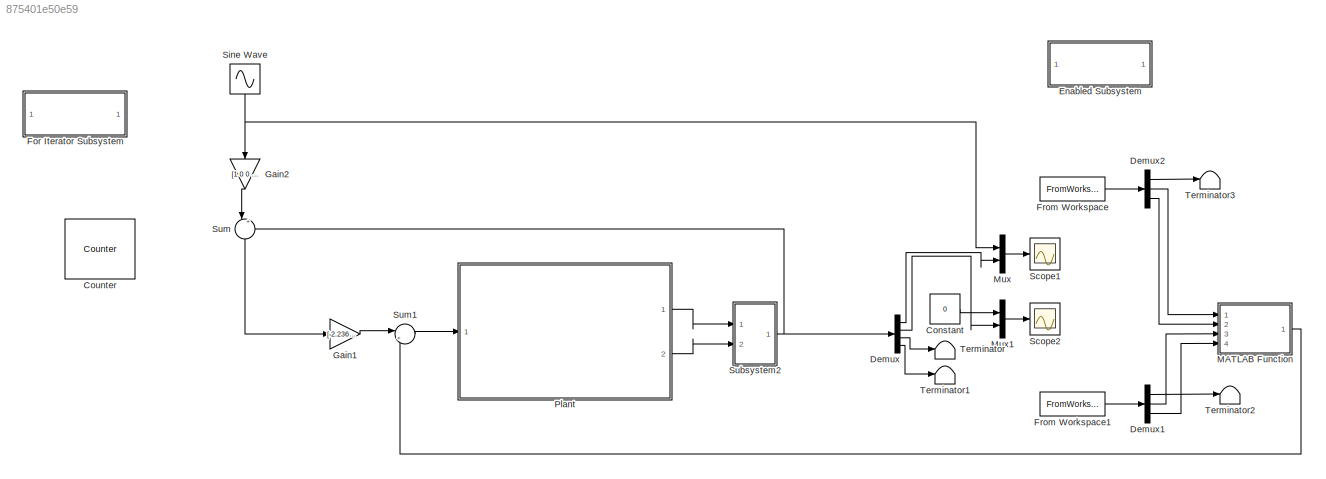
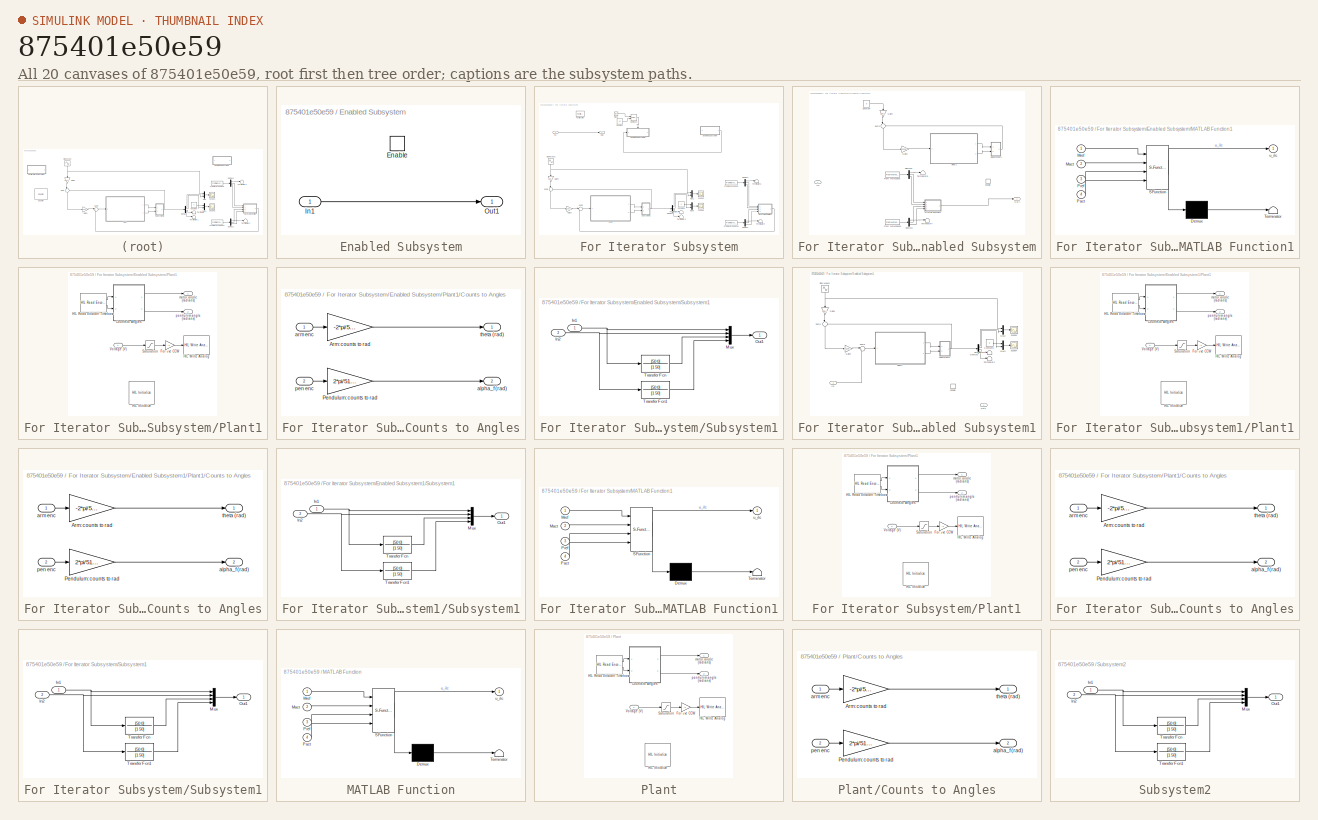
[diagram: thumbnail index - all 20 canvases of the model, root first then tree order]
MODEL slx_875401e50e59
KIND model
CONFIG AbsTol = auto
CONFIG EnableMultiTasking = on
CONFIG FixedStep = 0.002
CONFIG MaxStep = auto
CONFIG MinStep = auto
CONFIG RelTol = 1e-3
CONFIG SampleTimeConstraint = Unconstrained
CONFIG Solver = FixedStepDiscrete
CONFIG SolverName = FixedStepDiscrete
CONFIG StartTime = 0.0
CONFIG StopTime = inf
BLOCK [Constant] Constant
  Value = 0
BLOCK [Reference] Counter  REF=dspswit3/Counter
  Ports = [2, 2]
  SourceBlock = dspswit3/Counter
  SourceProductBaseCode = DS
  SourceProductName = DSP System Toolbox
  SourceType = Counter
BLOCK [Demux] Demux
  DisplayOption = bar
  Ports = [1, 4]
BLOCK [Demux] Demux1
  DisplayOption = bar
  Outputs = 3
  Ports = [1, 3]
BLOCK [Demux] Demux2
  DisplayOption = bar
  Outputs = 3
  Ports = [1, 3]
BLOCK [SubSystem] Enabled Subsystem
  Ports = [1, 1, 1]
  RequestExecContextInheritance = off
  TreatAsAtomicUnit = on
BLOCK [EnablePort] Enabled Subsystem/Enable
  Ports = []
BLOCK [Inport] Enabled Subsystem/In1
  IconDisplay = Port number
BLOCK [Outport] Enabled Subsystem/Out1
  IconDisplay = Port number
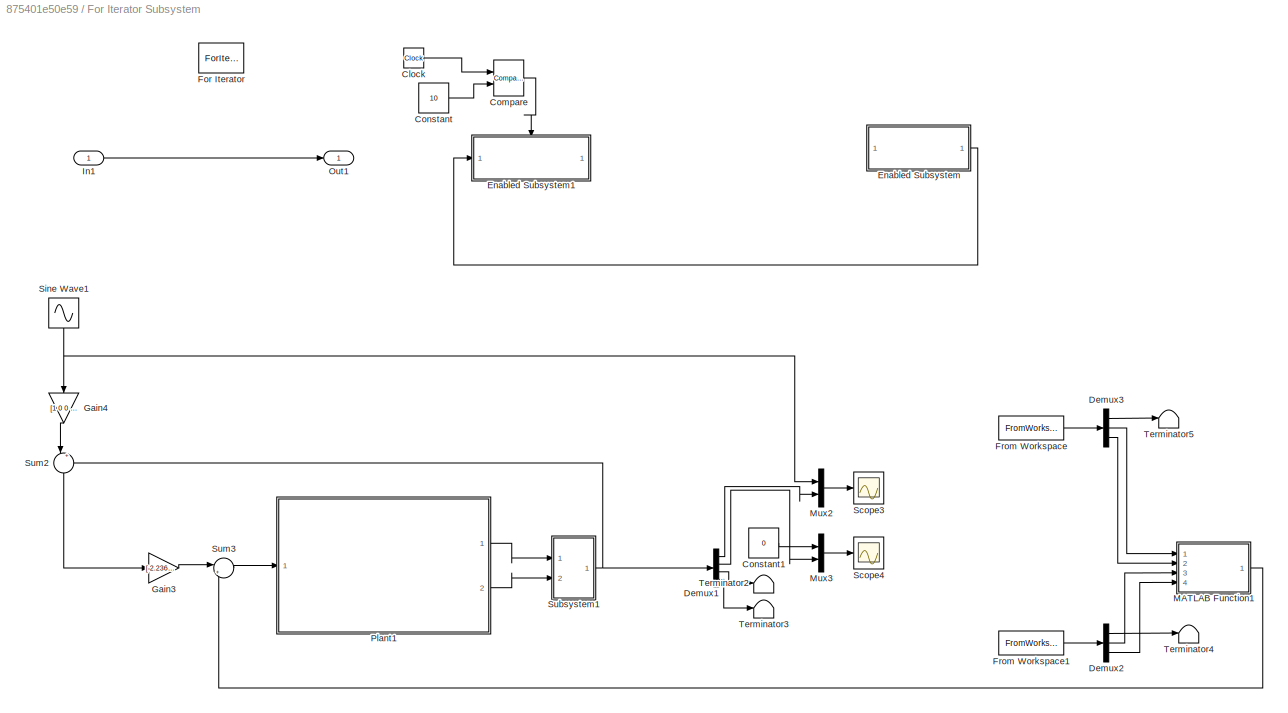
BLOCK [SubSystem] For Iterator Subsystem
  Ports = [1, 1]
  RequestExecContextInheritance = off
  TreatAsAtomicUnit = on
BLOCK [Clock] For Iterator Subsystem/Clock
BLOCK [Reference] For Iterator Subsystem/Compare  REF=quarc_library/Logic Operations/Compare
  Ports = [2, 1]
  SourceBlock = quarc_library/Logic Operations/Compare
  SourceProductName = QUARC Targets
  SourceType = Compare
BLOCK [Constant] For Iterator Subsystem/Constant
  Value = 10
BLOCK [Constant] For Iterator Subsystem/Constant1
  Value = 0
BLOCK [Demux] For Iterator Subsystem/Demux1
  DisplayOption = bar
  Ports = [1, 4]
BLOCK [Demux] For Iterator Subsystem/Demux2
  DisplayOption = bar
  Outputs = 3
  Ports = [1, 3]
BLOCK [Demux] For Iterator Subsystem/Demux3
  DisplayOption = bar
  Outputs = 3
  Ports = [1, 3]
BLOCK [SubSystem] For Iterator Subsystem/Enabled Subsystem
  Ports = [1, 1, 1]
  RequestExecContextInheritance = off
  TreatAsAtomicUnit = on
BLOCK [Constant] For Iterator Subsystem/Enabled Subsystem/Constant
  Value = 0
BLOCK [Demux] For Iterator Subsystem/Enabled Subsystem/Demux2
  DisplayOption = bar
  Outputs = 3
  Ports = [1, 3]
BLOCK [Demux] For Iterator Subsystem/Enabled Subsystem/Demux3
  DisplayOption = bar
  Outputs = 3
  Ports = [1, 3]
BLOCK [EnablePort] For Iterator Subsystem/Enabled Subsystem/Enable
  Ports = []
BLOCK [FromWorkspace] For Iterator Subsystem/Enabled Subsystem/From Workspace
  SampleTime = 0
  VariableName = Motor
  ZeroCross = on
BLOCK [FromWorkspace] For Iterator Subsystem/Enabled Subsystem/From Workspace1
  SampleTime = 0
  VariableName = Pend
  ZeroCross = on
BLOCK [Gain] For Iterator Subsystem/Enabled Subsystem/Gain3
  Gain = [-2.2361 37.6175 -1.5007 3.3789]
  Multiplication = Matrix(K*u)
  OutDataTypeStr = Inherit: Inherit via internal rule
  ParamDataTypeStr = Inherit: Inherit via internal rule
  SaturateOnIntegerOverflow = off
BLOCK [Gain] For Iterator Subsystem/Enabled Subsystem/Gain4
  Gain = [1 0 0 0]
  OutDataTypeStr = Inherit: Inherit via internal rule
  ParamDataTypeStr = Inherit: Inherit via internal rule
  SaturateOnIntegerOverflow = off
BLOCK [Inport] For Iterator Subsystem/Enabled Subsystem/In1
  IconDisplay = Port number
BLOCK [SubSystem] For Iterator Subsystem/Enabled Subsystem/MATLAB Function1
  ErrorFcn = Stateflow.Translate.translate
  PermitHierarchicalResolution = ExplicitOnly
  Ports = [4, 1]
  RequestExecContextInheritance = off
  SFBlockType = MATLAB Function
  TreatAsAtomicUnit = on
BLOCK [Demux] For Iterator Subsystem/Enabled Subsystem/MATLAB Function1/ Demux 
  Outputs = 1
  Ports = [1, 1]
BLOCK [S-Function] For Iterator Subsystem/Enabled Subsystem/MATLAB Function1/ SFunction 
  EnableBusSupport = off
  FunctionName = sf_sfun
  PortCounts = [4 2]
  Ports = [4, 2]
  SFcnIsStateOwnerBlock = off
  SFunctionDeploymentMode = off
  Tag = Stateflow S-Function ILC_hardware 1
BLOCK [Terminator] For Iterator Subsystem/Enabled Subsystem/MATLAB Function1/ Terminator 
BLOCK [Inport] For Iterator Subsystem/Enabled Subsystem/MATLAB Function1/Mact
  IconDisplay = Port number
  Port = 2
BLOCK [Inport] For Iterator Subsystem/Enabled Subsystem/MATLAB Function1/Mref
  IconDisplay = Port number
BLOCK [Inport] For Iterator Subsystem/Enabled Subsystem/MATLAB Function1/Pact
  IconDisplay = Port number
  Port = 4
BLOCK [Inport] For Iterator Subsystem/Enabled Subsystem/MATLAB Function1/Pref
  IconDisplay = Port number
  Port = 3
BLOCK [Outport] For Iterator Subsystem/Enabled Subsystem/MATLAB Function1/u_ilc
  IconDisplay = Port number
BLOCK [Outport] For Iterator Subsystem/Enabled Subsystem/Out1
  IconDisplay = Port number
BLOCK [SubSystem] For Iterator Subsystem/Enabled Subsystem/Plant1
  Ports = [1, 2]
  RequestExecContextInheritance = off
BLOCK [SubSystem] For Iterator Subsystem/Enabled Subsystem/Plant1/Counts to Angles
  Ports = [2, 2]
  RequestExecContextInheritance = off
BLOCK [Gain] For Iterator Subsystem/Enabled Subsystem/Plant1/Counts to Angles/Arm: counts to rad
  Gain = -2*pi/512/4
  OutDataTypeStr = Inherit: Inherit via internal rule
  ParamDataTypeStr = Inherit: Inherit via internal rule
  SaturateOnIntegerOverflow = off
BLOCK [Gain] For Iterator Subsystem/Enabled Subsystem/Plant1/Counts to Angles/Pendulum: counts to rad
  Gain = 2*pi/512/4
  OutDataTypeStr = Inherit: Inherit via internal rule
  ParamDataTypeStr = Inherit: Inherit via internal rule
  SaturateOnIntegerOverflow = off
BLOCK [Outport] For Iterator Subsystem/Enabled Subsystem/Plant1/Counts to Angles/alpha_f (rad)
  IconDisplay = Port number
  Port = 2
BLOCK [Inport] For Iterator Subsystem/Enabled Subsystem/Plant1/Counts to Angles/arm enc
  IconDisplay = Port number
BLOCK [Inport] For Iterator Subsystem/Enabled Subsystem/Plant1/Counts to Angles/pen enc
  IconDisplay = Port number
  Port = 2
BLOCK [Outport] For Iterator Subsystem/Enabled Subsystem/Plant1/Counts to Angles/theta (rad)
  IconDisplay = Port number
BLOCK [Gain] For Iterator Subsystem/Enabled Subsystem/Plant1/For +ve CCW
  Gain = -1
  OutDataTypeStr = Inherit: Inherit via internal rule
  ParamDataTypeStr = Inherit: Inherit via internal rule
  SaturateOnIntegerOverflow = off
BLOCK [Reference] For Iterator Subsystem/Enabled Subsystem/Plant1/HIL Initialize  REF=quarc_library/Data Acquisition/Generic/Configuration/HIL Initialize
  AttributesFormatString = %<object_name> (%<board_type>-%<board_number>)
  Ports = []
  SourceBlock = quarc_library/Data Acquisition/Generic/Configuration/HIL Initialize
  SourceProductName = QUARC Targets
  SourceType = HIL Initialize
  UserDataPersistent = on
BLOCK [Reference] For Iterator Subsystem/Enabled Subsystem/Plant1/HIL Read Encoder Timebase  REF=quarc_library/Data Acquisition/Generic/Timebases/HIL Read Encoder
Timebase
  AttributesFormatString = (%<object_name>)
  Ports = [0, 2]
  SourceBlock = quarc_library/Data Acquisition/Generic/Timebases/HIL Read Encoder\nTimebase
  SourceProductName = QUARC Targets
  SourceType = HIL Read Encoder Timebase
  UserDataPersistent = on
BLOCK [Reference] For Iterator Subsystem/Enabled Subsystem/Plant1/HIL Write Analog  REF=quarc_library/Data Acquisition/Generic/Immediate I//O/HIL Write Analog
  AttributesFormatString = (%<object_name>)
  Ports = [1]
  SourceBlock = quarc_library/Data Acquisition/Generic/Immediate I//O/HIL Write Analog
  SourceProductName = QUARC Targets
  SourceType = HIL Write Analog
  UserDataPersistent = on
BLOCK [Saturate] For Iterator Subsystem/Enabled Subsystem/Plant1/Saturation
  InputPortMap = u0
  LowerLimit = -10
  Ports = [1, 1]
  UpperLimit = 10
BLOCK [Inport] For Iterator Subsystem/Enabled Subsystem/Plant1/Voltage (V)
  IconDisplay = Port number
BLOCK [Outport] For Iterator Subsystem/Enabled Subsystem/Plant1/motor angle (radians)
  IconDisplay = Port number
BLOCK [Outport] For Iterator Subsystem/Enabled Subsystem/Plant1/pendulum angle (radians)
  IconDisplay = Port number
  Port = 2
BLOCK [SubSystem] For Iterator Subsystem/Enabled Subsystem/Subsystem1
  Ports = [2, 1]
  RequestExecContextInheritance = off
BLOCK [Inport] For Iterator Subsystem/Enabled Subsystem/Subsystem1/In1
  IconDisplay = Port number
BLOCK [Inport] For Iterator Subsystem/Enabled Subsystem/Subsystem1/In2
  IconDisplay = Port number
  Port = 2
BLOCK [Mux] For Iterator Subsystem/Enabled Subsystem/Subsystem1/Mux
  DisplayOption = bar
  Ports = [4, 1]
BLOCK [Outport] For Iterator Subsystem/Enabled Subsystem/Subsystem1/Out1
  IconDisplay = Port number
BLOCK [TransferFcn] For Iterator Subsystem/Enabled Subsystem/Subsystem1/Transfer Fcn
  Denominator = [1 50]
  Numerator = [50 0]
BLOCK [TransferFcn] For Iterator Subsystem/Enabled Subsystem/Subsystem1/Transfer Fcn1
  Denominator = [1 50]
  Numerator = [50 0]
BLOCK [Sum] For Iterator Subsystem/Enabled Subsystem/Sum2
  IconShape = round
  InputSameDT = off
  Inputs = |+-
  OutDataTypeStr = Inherit: Inherit via internal rule
  Ports = [2, 1]
  SaturateOnIntegerOverflow = off
BLOCK [Terminator] For Iterator Subsystem/Enabled Subsystem/Terminator4
BLOCK [Terminator] For Iterator Subsystem/Enabled Subsystem/Terminator5
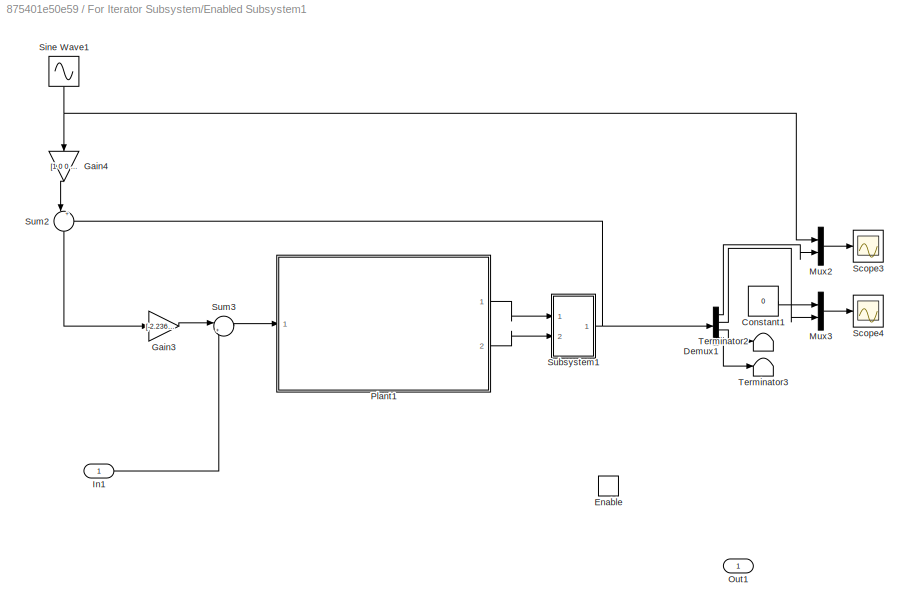
BLOCK [SubSystem] For Iterator Subsystem/Enabled Subsystem1
  Ports = [1, 1, 1]
  RequestExecContextInheritance = off
  TreatAsAtomicUnit = on
BLOCK [Constant] For Iterator Subsystem/Enabled Subsystem1/Constant1
  Value = 0
BLOCK [Demux] For Iterator Subsystem/Enabled Subsystem1/Demux1
  DisplayOption = bar
  Ports = [1, 4]
BLOCK [EnablePort] For Iterator Subsystem/Enabled Subsystem1/Enable
  Ports = []
BLOCK [Gain] For Iterator Subsystem/Enabled Subsystem1/Gain3
  Gain = [-2.2361 37.6175 -1.5007 3.3789]
  Multiplication = Matrix(K*u)
  OutDataTypeStr = Inherit: Inherit via internal rule
  ParamDataTypeStr = Inherit: Inherit via internal rule
  SaturateOnIntegerOverflow = off
BLOCK [Gain] For Iterator Subsystem/Enabled Subsystem1/Gain4
  Gain = [1 0 0 0]
  OutDataTypeStr = Inherit: Inherit via internal rule
  ParamDataTypeStr = Inherit: Inherit via internal rule
  SaturateOnIntegerOverflow = off
BLOCK [Inport] For Iterator Subsystem/Enabled Subsystem1/In1
  IconDisplay = Port number
BLOCK [Mux] For Iterator Subsystem/Enabled Subsystem1/Mux2
  DisplayOption = bar
  Inputs = 2
  Ports = [2, 1]
BLOCK [Mux] For Iterator Subsystem/Enabled Subsystem1/Mux3
  DisplayOption = bar
  Inputs = 2
  Ports = [2, 1]
BLOCK [Outport] For Iterator Subsystem/Enabled Subsystem1/Out1
  IconDisplay = Port number
BLOCK [SubSystem] For Iterator Subsystem/Enabled Subsystem1/Plant1
  Ports = [1, 2]
  RequestExecContextInheritance = off
BLOCK [SubSystem] For Iterator Subsystem/Enabled Subsystem1/Plant1/Counts to Angles
  Ports = [2, 2]
  RequestExecContextInheritance = off
BLOCK [Gain] For Iterator Subsystem/Enabled Subsystem1/Plant1/Counts to Angles/Arm: counts to rad
  Gain = -2*pi/512/4
  OutDataTypeStr = Inherit: Inherit via internal rule
  ParamDataTypeStr = Inherit: Inherit via internal rule
  SaturateOnIntegerOverflow = off
BLOCK [Gain] For Iterator Subsystem/Enabled Subsystem1/Plant1/Counts to Angles/Pendulum: counts to rad
  Gain = 2*pi/512/4
  OutDataTypeStr = Inherit: Inherit via internal rule
  ParamDataTypeStr = Inherit: Inherit via internal rule
  SaturateOnIntegerOverflow = off
BLOCK [Outport] For Iterator Subsystem/Enabled Subsystem1/Plant1/Counts to Angles/alpha_f (rad)
  IconDisplay = Port number
  Port = 2
BLOCK [Inport] For Iterator Subsystem/Enabled Subsystem1/Plant1/Counts to Angles/arm enc
  IconDisplay = Port number
BLOCK [Inport] For Iterator Subsystem/Enabled Subsystem1/Plant1/Counts to Angles/pen enc
  IconDisplay = Port number
  Port = 2
BLOCK [Outport] For Iterator Subsystem/Enabled Subsystem1/Plant1/Counts to Angles/theta (rad)
  IconDisplay = Port number
BLOCK [Gain] For Iterator Subsystem/Enabled Subsystem1/Plant1/For +ve CCW
  Gain = -1
  OutDataTypeStr = Inherit: Inherit via internal rule
  ParamDataTypeStr = Inherit: Inherit via internal rule
  SaturateOnIntegerOverflow = off
BLOCK [Reference] For Iterator Subsystem/Enabled Subsystem1/Plant1/HIL Initialize  REF=quarc_library/Data Acquisition/Generic/Configuration/HIL Initialize
  AttributesFormatString = %<object_name> (%<board_type>-%<board_number>)
  Ports = []
  SourceBlock = quarc_library/Data Acquisition/Generic/Configuration/HIL Initialize
  SourceProductName = QUARC Targets
  SourceType = HIL Initialize
  UserDataPersistent = on
BLOCK [Reference] For Iterator Subsystem/Enabled Subsystem1/Plant1/HIL Read Encoder Timebase  REF=quarc_library/Data Acquisition/Generic/Timebases/HIL Read Encoder
Timebase
  AttributesFormatString = (%<object_name>)
  Ports = [0, 2]
  SourceBlock = quarc_library/Data Acquisition/Generic/Timebases/HIL Read Encoder\nTimebase
  SourceProductName = QUARC Targets
  SourceType = HIL Read Encoder Timebase
  UserDataPersistent = on
BLOCK [Reference] For Iterator Subsystem/Enabled Subsystem1/Plant1/HIL Write Analog  REF=quarc_library/Data Acquisition/Generic/Immediate I//O/HIL Write Analog
  AttributesFormatString = (%<object_name>)
  Ports = [1]
  SourceBlock = quarc_library/Data Acquisition/Generic/Immediate I//O/HIL Write Analog
  SourceProductName = QUARC Targets
  SourceType = HIL Write Analog
  UserDataPersistent = on
BLOCK [Saturate] For Iterator Subsystem/Enabled Subsystem1/Plant1/Saturation
  InputPortMap = u0
  LowerLimit = -10
  Ports = [1, 1]
  UpperLimit = 10
BLOCK [Inport] For Iterator Subsystem/Enabled Subsystem1/Plant1/Voltage (V)
  IconDisplay = Port number
BLOCK [Outport] For Iterator Subsystem/Enabled Subsystem1/Plant1/motor angle (radians)
  IconDisplay = Port number
BLOCK [Outport] For Iterator Subsystem/Enabled Subsystem1/Plant1/pendulum angle (radians)
  IconDisplay = Port number
  Port = 2
BLOCK [Scope] For Iterator Subsystem/Enabled Subsystem1/Scope3
  Floating = off
  NumInputPorts = 1
  Ports = [1]
  ScopeSpecificationString = Simulink.scopes.TimeScopeBlockCfg('CurrentConfiguration', extmgr.ConfigurationSet(extmgr.Configuration('Core','General UI',true),extmgr.Configuration('Core','Source UI',true),extmgr.Configuration('Sources','WiredSimulink',true,'DataLogging',true,'DataLoggingSaveFormat','Array','DataLoggingVariableName','Motor2'),extmgr.Configuration('Visuals','Time Domain',true,'SerializedDisplays',{struct('MinYLi...<+1441ch>
BLOCK [Scope] For Iterator Subsystem/Enabled Subsystem1/Scope4
  Floating = off
  NumInputPorts = 1
  Ports = [1]
  ScopeSpecificationString = Simulink.scopes.TimeScopeBlockCfg('CurrentConfiguration', extmgr.ConfigurationSet(extmgr.Configuration('Core','General UI',true),extmgr.Configuration('Core','Source UI',true),extmgr.Configuration('Sources','WiredSimulink',true,'DataLogging',true,'DataLoggingSaveFormat','Array','DataLoggingVariableName','Pend2'),extmgr.Configuration('Visuals','Time Domain',true,'SerializedDisplays',{struct('MinYLim...<+1466ch>
BLOCK [Sin] For Iterator Subsystem/Enabled Subsystem1/Sine Wave1
  Frequency = 2*pi
  Ports = [0, 1]
  SampleTime = 0
BLOCK [SubSystem] For Iterator Subsystem/Enabled Subsystem1/Subsystem1
  Ports = [2, 1]
  RequestExecContextInheritance = off
BLOCK [Inport] For Iterator Subsystem/Enabled Subsystem1/Subsystem1/In1
  IconDisplay = Port number
BLOCK [Inport] For Iterator Subsystem/Enabled Subsystem1/Subsystem1/In2
  IconDisplay = Port number
  Port = 2
BLOCK [Mux] For Iterator Subsystem/Enabled Subsystem1/Subsystem1/Mux
  DisplayOption = bar
  Ports = [4, 1]
BLOCK [Outport] For Iterator Subsystem/Enabled Subsystem1/Subsystem1/Out1
  IconDisplay = Port number
BLOCK [TransferFcn] For Iterator Subsystem/Enabled Subsystem1/Subsystem1/Transfer Fcn
  Denominator = [1 50]
  Numerator = [50 0]
BLOCK [TransferFcn] For Iterator Subsystem/Enabled Subsystem1/Subsystem1/Transfer Fcn1
  Denominator = [1 50]
  Numerator = [50 0]
BLOCK [Sum] For Iterator Subsystem/Enabled Subsystem1/Sum2
  IconShape = round
  InputSameDT = off
  Inputs = |+-
  OutDataTypeStr = Inherit: Inherit via internal rule
  Ports = [2, 1]
  SaturateOnIntegerOverflow = off
BLOCK [Sum] For Iterator Subsystem/Enabled Subsystem1/Sum3
  IconShape = round
  InputSameDT = off
  Inputs = |++
  OutDataTypeStr = Inherit: Inherit via internal rule
  Ports = [2, 1]
  SaturateOnIntegerOverflow = off
BLOCK [Terminator] For Iterator Subsystem/Enabled Subsystem1/Terminator2
BLOCK [Terminator] For Iterator Subsystem/Enabled Subsystem1/Terminator3
BLOCK [ForIterator] For Iterator Subsystem/For Iterator
  IterationLimit = 50
  Ports = [0, 1]
BLOCK [FromWorkspace] For Iterator Subsystem/From Workspace
  SampleTime = 0
  VariableName = Motor
  ZeroCross = on
BLOCK [FromWorkspace] For Iterator Subsystem/From Workspace1
  SampleTime = 0
  VariableName = Pend
  ZeroCross = on
BLOCK [Gain] For Iterator Subsystem/Gain3
  Gain = [-2.2361 37.6175 -1.5007 3.3789]
  Multiplication = Matrix(K*u)
  OutDataTypeStr = Inherit: Inherit via internal rule
  ParamDataTypeStr = Inherit: Inherit via internal rule
  SaturateOnIntegerOverflow = off
BLOCK [Gain] For Iterator Subsystem/Gain4
  Gain = [1 0 0 0]
  OutDataTypeStr = Inherit: Inherit via internal rule
  ParamDataTypeStr = Inherit: Inherit via internal rule
  SaturateOnIntegerOverflow = off
BLOCK [Inport] For Iterator Subsystem/In1
  IconDisplay = Port number
BLOCK [SubSystem] For Iterator Subsystem/MATLAB Function1
  ErrorFcn = Stateflow.Translate.translate
  PermitHierarchicalResolution = ExplicitOnly
  Ports = [4, 1]
  RequestExecContextInheritance = off
  SFBlockType = MATLAB Function
  TreatAsAtomicUnit = on
BLOCK [Demux] For Iterator Subsystem/MATLAB Function1/ Demux 
  Outputs = 1
  Ports = [1, 1]
BLOCK [S-Function] For Iterator Subsystem/MATLAB Function1/ SFunction 
  EnableBusSupport = off
  FunctionName = sf_sfun
  PortCounts = [4 2]
  Ports = [4, 2]
  SFcnIsStateOwnerBlock = off
  SFunctionDeploymentMode = off
  Tag = Stateflow S-Function ILC_hardware 3
BLOCK [Terminator] For Iterator Subsystem/MATLAB Function1/ Terminator 
BLOCK [Inport] For Iterator Subsystem/MATLAB Function1/Mact
  IconDisplay = Port number
  Port = 2
BLOCK [Inport] For Iterator Subsystem/MATLAB Function1/Mref
  IconDisplay = Port number
BLOCK [Inport] For Iterator Subsystem/MATLAB Function1/Pact
  IconDisplay = Port number
  Port = 4
BLOCK [Inport] For Iterator Subsystem/MATLAB Function1/Pref
  IconDisplay = Port number
  Port = 3
BLOCK [Outport] For Iterator Subsystem/MATLAB Function1/u_ilc
  IconDisplay = Port number
BLOCK [Mux] For Iterator Subsystem/Mux2
  DisplayOption = bar
  Inputs = 2
  Ports = [2, 1]
BLOCK [Mux] For Iterator Subsystem/Mux3
  DisplayOption = bar
  Inputs = 2
  Ports = [2, 1]
BLOCK [Outport] For Iterator Subsystem/Out1
  IconDisplay = Port number
BLOCK [SubSystem] For Iterator Subsystem/Plant1
  Ports = [1, 2]
  RequestExecContextInheritance = off
BLOCK [SubSystem] For Iterator Subsystem/Plant1/Counts to Angles
  Ports = [2, 2]
  RequestExecContextInheritance = off
BLOCK [Gain] For Iterator Subsystem/Plant1/Counts to Angles/Arm: counts to rad
  Gain = -2*pi/512/4
  OutDataTypeStr = Inherit: Inherit via internal rule
  ParamDataTypeStr = Inherit: Inherit via internal rule
  SaturateOnIntegerOverflow = off
BLOCK [Gain] For Iterator Subsystem/Plant1/Counts to Angles/Pendulum: counts to rad
  Gain = 2*pi/512/4
  OutDataTypeStr = Inherit: Inherit via internal rule
  ParamDataTypeStr = Inherit: Inherit via internal rule
  SaturateOnIntegerOverflow = off
BLOCK [Outport] For Iterator Subsystem/Plant1/Counts to Angles/alpha_f (rad)
  IconDisplay = Port number
  Port = 2
BLOCK [Inport] For Iterator Subsystem/Plant1/Counts to Angles/arm enc
  IconDisplay = Port number
BLOCK [Inport] For Iterator Subsystem/Plant1/Counts to Angles/pen enc
  IconDisplay = Port number
  Port = 2
BLOCK [Outport] For Iterator Subsystem/Plant1/Counts to Angles/theta (rad)
  IconDisplay = Port number
BLOCK [Gain] For Iterator Subsystem/Plant1/For +ve CCW
  Gain = -1
  OutDataTypeStr = Inherit: Inherit via internal rule
  ParamDataTypeStr = Inherit: Inherit via internal rule
  SaturateOnIntegerOverflow = off
BLOCK [Reference] For Iterator Subsystem/Plant1/HIL Initialize  REF=quarc_library/Data Acquisition/Generic/Configuration/HIL Initialize
  AttributesFormatString = %<object_name> (%<board_type>-%<board_number>)
  Ports = []
  SourceBlock = quarc_library/Data Acquisition/Generic/Configuration/HIL Initialize
  SourceProductName = QUARC Targets
  SourceType = HIL Initialize
  UserDataPersistent = on
BLOCK [Reference] For Iterator Subsystem/Plant1/HIL Read Encoder Timebase  REF=quarc_library/Data Acquisition/Generic/Timebases/HIL Read Encoder
Timebase
  AttributesFormatString = (%<object_name>)
  Ports = [0, 2]
  SourceBlock = quarc_library/Data Acquisition/Generic/Timebases/HIL Read Encoder\nTimebase
  SourceProductName = QUARC Targets
  SourceType = HIL Read Encoder Timebase
  UserDataPersistent = on
BLOCK [Reference] For Iterator Subsystem/Plant1/HIL Write Analog  REF=quarc_library/Data Acquisition/Generic/Immediate I//O/HIL Write Analog
  AttributesFormatString = (%<object_name>)
  Ports = [1]
  SourceBlock = quarc_library/Data Acquisition/Generic/Immediate I//O/HIL Write Analog
  SourceProductName = QUARC Targets
  SourceType = HIL Write Analog
  UserDataPersistent = on
BLOCK [Saturate] For Iterator Subsystem/Plant1/Saturation
  InputPortMap = u0
  LowerLimit = -10
  Ports = [1, 1]
  UpperLimit = 10
BLOCK [Inport] For Iterator Subsystem/Plant1/Voltage (V)
  IconDisplay = Port number
BLOCK [Outport] For Iterator Subsystem/Plant1/motor angle (radians)
  IconDisplay = Port number
BLOCK [Outport] For Iterator Subsystem/Plant1/pendulum angle (radians)
  IconDisplay = Port number
  Port = 2
BLOCK [Scope] For Iterator Subsystem/Scope3
  Floating = off
  NumInputPorts = 1
  Ports = [1]
  ScopeSpecificationString = Simulink.scopes.TimeScopeBlockCfg('CurrentConfiguration', extmgr.ConfigurationSet(extmgr.Configuration('Core','General UI',true),extmgr.Configuration('Core','Source UI',true),extmgr.Configuration('Sources','WiredSimulink',true,'DataLogging',true,'DataLoggingSaveFormat','Array','DataLoggingVariableName','Motor1'),extmgr.Configuration('Visuals','Time Domain',true,'SerializedDisplays',{struct('MinYLi...<+1441ch>
BLOCK [Scope] For Iterator Subsystem/Scope4
  Floating = off
  NumInputPorts = 1
  Ports = [1]
  ScopeSpecificationString = Simulink.scopes.TimeScopeBlockCfg('CurrentConfiguration', extmgr.ConfigurationSet(extmgr.Configuration('Core','General UI',true),extmgr.Configuration('Core','Source UI',true),extmgr.Configuration('Sources','WiredSimulink',true,'DataLogging',true,'DataLoggingSaveFormat','Array','DataLoggingVariableName','Pend1'),extmgr.Configuration('Visuals','Time Domain',true,'SerializedDisplays',{struct('MinYLim...<+1466ch>
BLOCK [Sin] For Iterator Subsystem/Sine Wave1
  Frequency = 2*pi
  Ports = [0, 1]
  SampleTime = 0
BLOCK [SubSystem] For Iterator Subsystem/Subsystem1
  Ports = [2, 1]
  RequestExecContextInheritance = off
BLOCK [Inport] For Iterator Subsystem/Subsystem1/In1
  IconDisplay = Port number
BLOCK [Inport] For Iterator Subsystem/Subsystem1/In2
  IconDisplay = Port number
  Port = 2
BLOCK [Mux] For Iterator Subsystem/Subsystem1/Mux
  DisplayOption = bar
  Ports = [4, 1]
BLOCK [Outport] For Iterator Subsystem/Subsystem1/Out1
  IconDisplay = Port number
BLOCK [TransferFcn] For Iterator Subsystem/Subsystem1/Transfer Fcn
  Denominator = [1 50]
  Numerator = [50 0]
BLOCK [TransferFcn] For Iterator Subsystem/Subsystem1/Transfer Fcn1
  Denominator = [1 50]
  Numerator = [50 0]
BLOCK [Sum] For Iterator Subsystem/Sum2
  IconShape = round
  InputSameDT = off
  Inputs = |+-
  OutDataTypeStr = Inherit: Inherit via internal rule
  Ports = [2, 1]
  SaturateOnIntegerOverflow = off
BLOCK [Sum] For Iterator Subsystem/Sum3
  IconShape = round
  InputSameDT = off
  Inputs = |++
  OutDataTypeStr = Inherit: Inherit via internal rule
  Ports = [2, 1]
  SaturateOnIntegerOverflow = off
BLOCK [Terminator] For Iterator Subsystem/Terminator2
BLOCK [Terminator] For Iterator Subsystem/Terminator3
BLOCK [Terminator] For Iterator Subsystem/Terminator4
BLOCK [Terminator] For Iterator Subsystem/Terminator5
BLOCK [FromWorkspace] From Workspace
  SampleTime = 0
  VariableName = Motor
  ZeroCross = on
BLOCK [FromWorkspace] From Workspace1
  SampleTime = 0
  VariableName = Pend
  ZeroCross = on
BLOCK [Gain] Gain1
  Gain = [-2.2361 37.6175 -1.5007 3.3789]
  Multiplication = Matrix(K*u)
  OutDataTypeStr = Inherit: Inherit via internal rule
  ParamDataTypeStr = Inherit: Inherit via internal rule
  SaturateOnIntegerOverflow = off
BLOCK [Gain] Gain2
  Gain = [1 0 0 0]
  OutDataTypeStr = Inherit: Inherit via internal rule
  ParamDataTypeStr = Inherit: Inherit via internal rule
  SaturateOnIntegerOverflow = off
BLOCK [SubSystem] MATLAB Function
  ErrorFcn = Stateflow.Translate.translate
  PermitHierarchicalResolution = ExplicitOnly
  Ports = [4, 1]
  RequestExecContextInheritance = off
  SFBlockType = MATLAB Function
  TreatAsAtomicUnit = on
BLOCK [Demux] MATLAB Function/ Demux 
  Outputs = 1
  Ports = [1, 1]
BLOCK [S-Function] MATLAB Function/ SFunction 
  EnableBusSupport = off
  FunctionName = sf_sfun
  PortCounts = [4 2]
  Ports = [4, 2]
  SFcnIsStateOwnerBlock = off
  SFunctionDeploymentMode = off
  Tag = Stateflow S-Function ILC_hardware 2
BLOCK [Terminator] MATLAB Function/ Terminator 
BLOCK [Inport] MATLAB Function/Mact
  IconDisplay = Port number
  Port = 2
BLOCK [Inport] MATLAB Function/Mref
  IconDisplay = Port number
BLOCK [Inport] MATLAB Function/Pact
  IconDisplay = Port number
  Port = 4
BLOCK [Inport] MATLAB Function/Pref
  IconDisplay = Port number
  Port = 3
BLOCK [Outport] MATLAB Function/u_ilc
  IconDisplay = Port number
BLOCK [Mux] Mux
  DisplayOption = bar
  Inputs = 2
  Ports = [2, 1]
BLOCK [Mux] Mux1
  DisplayOption = bar
  Inputs = 2
  Ports = [2, 1]
BLOCK [SubSystem] Plant
  Ports = [1, 2]
  RequestExecContextInheritance = off
BLOCK [SubSystem] Plant/Counts to Angles
  Ports = [2, 2]
  RequestExecContextInheritance = off
BLOCK [Gain] Plant/Counts to Angles/Arm: counts to rad
  Gain = -2*pi/512/4
  OutDataTypeStr = Inherit: Inherit via internal rule
  ParamDataTypeStr = Inherit: Inherit via internal rule
  SaturateOnIntegerOverflow = off
BLOCK [Gain] Plant/Counts to Angles/Pendulum: counts to rad
  Gain = 2*pi/512/4
  OutDataTypeStr = Inherit: Inherit via internal rule
  ParamDataTypeStr = Inherit: Inherit via internal rule
  SaturateOnIntegerOverflow = off
BLOCK [Outport] Plant/Counts to Angles/alpha_f (rad)
  IconDisplay = Port number
  Port = 2
BLOCK [Inport] Plant/Counts to Angles/arm enc
  IconDisplay = Port number
BLOCK [Inport] Plant/Counts to Angles/pen enc
  IconDisplay = Port number
  Port = 2
BLOCK [Outport] Plant/Counts to Angles/theta (rad)
  IconDisplay = Port number
BLOCK [Gain] Plant/For +ve CCW
  Gain = -1
  OutDataTypeStr = Inherit: Inherit via internal rule
  ParamDataTypeStr = Inherit: Inherit via internal rule
  SaturateOnIntegerOverflow = off
BLOCK [Reference] Plant/HIL Initialize  REF=quarc_library/Data Acquisition/Generic/Configuration/HIL Initialize
  AttributesFormatString = %<object_name> (%<board_type>-%<board_number>)
  Ports = []
  SourceBlock = quarc_library/Data Acquisition/Generic/Configuration/HIL Initialize
  SourceProductName = QUARC Targets
  SourceType = HIL Initialize
  UserDataPersistent = on
BLOCK [Reference] Plant/HIL Read Encoder Timebase  REF=quarc_library/Data Acquisition/Generic/Timebases/HIL Read Encoder
Timebase
  AttributesFormatString = (%<object_name>)
  Ports = [0, 2]
  SourceBlock = quarc_library/Data Acquisition/Generic/Timebases/HIL Read Encoder\nTimebase
  SourceProductName = QUARC Targets
  SourceType = HIL Read Encoder Timebase
  UserDataPersistent = on
BLOCK [Reference] Plant/HIL Write Analog  REF=quarc_library/Data Acquisition/Generic/Immediate I//O/HIL Write Analog
  AttributesFormatString = (%<object_name>)
  Ports = [1]
  SourceBlock = quarc_library/Data Acquisition/Generic/Immediate I//O/HIL Write Analog
  SourceProductName = QUARC Targets
  SourceType = HIL Write Analog
  UserDataPersistent = on
BLOCK [Saturate] Plant/Saturation
  InputPortMap = u0
  LowerLimit = -10
  Ports = [1, 1]
  UpperLimit = 10
BLOCK [Inport] Plant/Voltage (V)
  IconDisplay = Port number
BLOCK [Outport] Plant/motor angle (radians)
  IconDisplay = Port number
BLOCK [Outport] Plant/pendulum angle (radians)
  IconDisplay = Port number
  Port = 2
BLOCK [Scope] Scope1
  Floating = off
  NumInputPorts = 1
  Ports = [1]
  ScopeSpecificationString = Simulink.scopes.TimeScopeBlockCfg('CurrentConfiguration', extmgr.ConfigurationSet(extmgr.Configuration('Core','General UI',true),extmgr.Configuration('Core','Source UI',true),extmgr.Configuration('Sources','WiredSimulink',true,'DataLogging',true,'DataLoggingSaveFormat','Array','DataLoggingVariableName','Motor'),extmgr.Configuration('Visuals','Time Domain',true,'SerializedDisplays',{struct('MinYLim...<+1440ch>
BLOCK [Scope] Scope2
  Floating = off
  NumInputPorts = 1
  Ports = [1]
  ScopeSpecificationString = Simulink.scopes.TimeScopeBlockCfg('CurrentConfiguration', extmgr.ConfigurationSet(extmgr.Configuration('Core','General UI',true),extmgr.Configuration('Core','Source UI',true),extmgr.Configuration('Sources','WiredSimulink',true,'DataLogging',true,'DataLoggingSaveFormat','Array','DataLoggingVariableName','Pend'),extmgr.Configuration('Visuals','Time Domain',true,'SerializedDisplays',{struct('MinYLimR...<+1465ch>
BLOCK [Sin] Sine Wave
  Frequency = 2*pi
  Ports = [0, 1]
  SampleTime = 0
BLOCK [SubSystem] Subsystem2
  Ports = [2, 1]
  RequestExecContextInheritance = off
BLOCK [Inport] Subsystem2/In1
  IconDisplay = Port number
BLOCK [Inport] Subsystem2/In2
  IconDisplay = Port number
  Port = 2
BLOCK [Mux] Subsystem2/Mux
  DisplayOption = bar
  Ports = [4, 1]
BLOCK [Outport] Subsystem2/Out1
  IconDisplay = Port number
BLOCK [TransferFcn] Subsystem2/Transfer Fcn
  Denominator = [1 50]
  Numerator = [50 0]
BLOCK [TransferFcn] Subsystem2/Transfer Fcn1
  Denominator = [1 50]
  Numerator = [50 0]
BLOCK [Sum] Sum
  IconShape = round
  InputSameDT = off
  Inputs = |+-
  OutDataTypeStr = Inherit: Inherit via internal rule
  Ports = [2, 1]
  SaturateOnIntegerOverflow = off
BLOCK [Sum] Sum1
  IconShape = round
  InputSameDT = off
  Inputs = |++
  OutDataTypeStr = Inherit: Inherit via internal rule
  Ports = [2, 1]
  SaturateOnIntegerOverflow = off
BLOCK [Terminator] Terminator
BLOCK [Terminator] Terminator1
BLOCK [Terminator] Terminator2
BLOCK [Terminator] Terminator3
LINE Constant:1 -> Mux1:1
LINE Demux1:1 -> Terminator2:1
LINE Demux1:2 -> MATLAB Function:3
LINE Demux1:3 -> MATLAB Function:4
LINE Demux2:1 -> Terminator3:1
LINE Demux2:2 -> MATLAB Function:1
LINE Demux2:3 -> MATLAB Function:2
LINE Demux:1 -> Mux:2
LINE Demux:2 -> Mux1:2
LINE Demux:3 -> Terminator:1
LINE Demux:4 -> Terminator1:1
LINE Enabled Subsystem/In1:1 -> Enabled Subsystem/Out1:1
LINE For Iterator Subsystem/Clock:1 -> For Iterator Subsystem/Compare:1
LINE For Iterator Subsystem/Compare:1 -> For Iterator Subsystem/Enabled Subsystem1:enable
LINE For Iterator Subsystem/Constant1:1 -> For Iterator Subsystem/Mux3:1
LINE For Iterator Subsystem/Constant:1 -> For Iterator Subsystem/Compare:2
LINE For Iterator Subsystem/Demux1:1 -> For Iterator Subsystem/Mux2:2
LINE For Iterator Subsystem/Demux1:2 -> For Iterator Subsystem/Mux3:2
LINE For Iterator Subsystem/Demux1:3 -> For Iterator Subsystem/Terminator2:1
LINE For Iterator Subsystem/Demux1:4 -> For Iterator Subsystem/Terminator3:1
LINE For Iterator Subsystem/Demux2:1 -> For Iterator Subsystem/Terminator4:1
LINE For Iterator Subsystem/Demux2:2 -> For Iterator Subsystem/MATLAB Function1:3
LINE For Iterator Subsystem/Demux2:3 -> For Iterator Subsystem/MATLAB Function1:4
LINE For Iterator Subsystem/Demux3:1 -> For Iterator Subsystem/Terminator5:1
LINE For Iterator Subsystem/Demux3:2 -> For Iterator Subsystem/MATLAB Function1:1
LINE For Iterator Subsystem/Demux3:3 -> For Iterator Subsystem/MATLAB Function1:2
LINE For Iterator Subsystem/Enabled Subsystem/Constant:1 -> For Iterator Subsystem/Enabled Subsystem/Gain4:1
LINE For Iterator Subsystem/Enabled Subsystem/Demux2:1 -> For Iterator Subsystem/Enabled Subsystem/Terminator4:1
LINE For Iterator Subsystem/Enabled Subsystem/Demux2:2 -> For Iterator Subsystem/Enabled Subsystem/MATLAB Function1:3
LINE For Iterator Subsystem/Enabled Subsystem/Demux2:3 -> For Iterator Subsystem/Enabled Subsystem/MATLAB Function1:4
LINE For Iterator Subsystem/Enabled Subsystem/Demux3:1 -> For Iterator Subsystem/Enabled Subsystem/Terminator5:1
LINE For Iterator Subsystem/Enabled Subsystem/Demux3:2 -> For Iterator Subsystem/Enabled Subsystem/MATLAB Function1:1
LINE For Iterator Subsystem/Enabled Subsystem/Demux3:3 -> For Iterator Subsystem/Enabled Subsystem/MATLAB Function1:2
LINE For Iterator Subsystem/Enabled Subsystem/From Workspace1:1 -> For Iterator Subsystem/Enabled Subsystem/Demux2:1
LINE For Iterator Subsystem/Enabled Subsystem/From Workspace:1 -> For Iterator Subsystem/Enabled Subsystem/Demux3:1
LINE For Iterator Subsystem/Enabled Subsystem/Gain3:1 -> For Iterator Subsystem/Enabled Subsystem/Plant1:1
LINE For Iterator Subsystem/Enabled Subsystem/Gain4:1 -> For Iterator Subsystem/Enabled Subsystem/Sum2:1
LINE For Iterator Subsystem/Enabled Subsystem/MATLAB Function1:1 -> For Iterator Subsystem/Enabled Subsystem/Out1:1
LINE For Iterator Subsystem/Enabled Subsystem/Plant1/Counts to Angles/Arm: counts to rad:1 -> For Iterator Subsystem/Enabled Subsystem/Plant1/Counts to Angles/theta (rad):1
LINE For Iterator Subsystem/Enabled Subsystem/Plant1/Counts to Angles/Pendulum: counts to rad:1 -> For Iterator Subsystem/Enabled Subsystem/Plant1/Counts to Angles/alpha_f (rad):1
LINE For Iterator Subsystem/Enabled Subsystem/Plant1/Counts to Angles/arm enc:1 -> For Iterator Subsystem/Enabled Subsystem/Plant1/Counts to Angles/Arm: counts to rad:1
LINE For Iterator Subsystem/Enabled Subsystem/Plant1/Counts to Angles/pen enc:1 -> For Iterator Subsystem/Enabled Subsystem/Plant1/Counts to Angles/Pendulum: counts to rad:1
LINE For Iterator Subsystem/Enabled Subsystem/Plant1/Counts to Angles:1 -> For Iterator Subsystem/Enabled Subsystem/Plant1/motor angle (radians):1
LINE For Iterator Subsystem/Enabled Subsystem/Plant1/Counts to Angles:2 -> For Iterator Subsystem/Enabled Subsystem/Plant1/pendulum angle (radians):1
LINE For Iterator Subsystem/Enabled Subsystem/Plant1/For +ve CCW:1 -> For Iterator Subsystem/Enabled Subsystem/Plant1/HIL Write Analog:1
LINE For Iterator Subsystem/Enabled Subsystem/Plant1/HIL Read Encoder Timebase:1 -> For Iterator Subsystem/Enabled Subsystem/Plant1/Counts to Angles:1
LINE For Iterator Subsystem/Enabled Subsystem/Plant1/HIL Read Encoder Timebase:2 -> For Iterator Subsystem/Enabled Subsystem/Plant1/Counts to Angles:2
LINE For Iterator Subsystem/Enabled Subsystem/Plant1/Saturation:1 -> For Iterator Subsystem/Enabled Subsystem/Plant1/For +ve CCW:1
LINE For Iterator Subsystem/Enabled Subsystem/Plant1/Voltage (V):1 -> For Iterator Subsystem/Enabled Subsystem/Plant1/Saturation:1
LINE For Iterator Subsystem/Enabled Subsystem/Plant1:1 -> For Iterator Subsystem/Enabled Subsystem/Subsystem1:1
LINE For Iterator Subsystem/Enabled Subsystem/Plant1:2 -> For Iterator Subsystem/Enabled Subsystem/Subsystem1:2
NET For Iterator Subsystem/Enabled Subsystem/Subsystem1/In1:1 -> For Iterator Subsystem/Enabled Subsystem/Subsystem1/Mux:1, For Iterator Subsystem/Enabled Subsystem/Subsystem1/Transfer Fcn:1
NET For Iterator Subsystem/Enabled Subsystem/Subsystem1/In2:1 -> For Iterator Subsystem/Enabled Subsystem/Subsystem1/Mux:2, For Iterator Subsystem/Enabled Subsystem/Subsystem1/Transfer Fcn1:1
LINE For Iterator Subsystem/Enabled Subsystem/Subsystem1/Mux:1 -> For Iterator Subsystem/Enabled Subsystem/Subsystem1/Out1:1
LINE For Iterator Subsystem/Enabled Subsystem/Subsystem1/Transfer Fcn1:1 -> For Iterator Subsystem/Enabled Subsystem/Subsystem1/Mux:4
LINE For Iterator Subsystem/Enabled Subsystem/Subsystem1/Transfer Fcn:1 -> For Iterator Subsystem/Enabled Subsystem/Subsystem1/Mux:3
LINE For Iterator Subsystem/Enabled Subsystem/Subsystem1:1 -> For Iterator Subsystem/Enabled Subsystem/Sum2:2
LINE For Iterator Subsystem/Enabled Subsystem/Sum2:1 -> For Iterator Subsystem/Enabled Subsystem/Gain3:1
LINE For Iterator Subsystem/Enabled Subsystem1/Constant1:1 -> For Iterator Subsystem/Enabled Subsystem1/Mux3:1
LINE For Iterator Subsystem/Enabled Subsystem1/Demux1:1 -> For Iterator Subsystem/Enabled Subsystem1/Mux2:2
LINE For Iterator Subsystem/Enabled Subsystem1/Demux1:2 -> For Iterator Subsystem/Enabled Subsystem1/Mux3:2
LINE For Iterator Subsystem/Enabled Subsystem1/Demux1:3 -> For Iterator Subsystem/Enabled Subsystem1/Terminator2:1
LINE For Iterator Subsystem/Enabled Subsystem1/Demux1:4 -> For Iterator Subsystem/Enabled Subsystem1/Terminator3:1
LINE For Iterator Subsystem/Enabled Subsystem1/Gain3:1 -> For Iterator Subsystem/Enabled Subsystem1/Sum3:1
LINE For Iterator Subsystem/Enabled Subsystem1/Gain4:1 -> For Iterator Subsystem/Enabled Subsystem1/Sum2:1
LINE For Iterator Subsystem/Enabled Subsystem1/In1:1 -> For Iterator Subsystem/Enabled Subsystem1/Sum3:2
LINE For Iterator Subsystem/Enabled Subsystem1/Mux2:1 -> For Iterator Subsystem/Enabled Subsystem1/Scope3:1
LINE For Iterator Subsystem/Enabled Subsystem1/Mux3:1 -> For Iterator Subsystem/Enabled Subsystem1/Scope4:1
LINE For Iterator Subsystem/Enabled Subsystem1/Plant1/Counts to Angles/Arm: counts to rad:1 -> For Iterator Subsystem/Enabled Subsystem1/Plant1/Counts to Angles/theta (rad):1
LINE For Iterator Subsystem/Enabled Subsystem1/Plant1/Counts to Angles/Pendulum: counts to rad:1 -> For Iterator Subsystem/Enabled Subsystem1/Plant1/Counts to Angles/alpha_f (rad):1
LINE For Iterator Subsystem/Enabled Subsystem1/Plant1/Counts to Angles/arm enc:1 -> For Iterator Subsystem/Enabled Subsystem1/Plant1/Counts to Angles/Arm: counts to rad:1
LINE For Iterator Subsystem/Enabled Subsystem1/Plant1/Counts to Angles/pen enc:1 -> For Iterator Subsystem/Enabled Subsystem1/Plant1/Counts to Angles/Pendulum: counts to rad:1
LINE For Iterator Subsystem/Enabled Subsystem1/Plant1/Counts to Angles:1 -> For Iterator Subsystem/Enabled Subsystem1/Plant1/motor angle (radians):1
LINE For Iterator Subsystem/Enabled Subsystem1/Plant1/Counts to Angles:2 -> For Iterator Subsystem/Enabled Subsystem1/Plant1/pendulum angle (radians):1
LINE For Iterator Subsystem/Enabled Subsystem1/Plant1/For +ve CCW:1 -> For Iterator Subsystem/Enabled Subsystem1/Plant1/HIL Write Analog:1
LINE For Iterator Subsystem/Enabled Subsystem1/Plant1/HIL Read Encoder Timebase:1 -> For Iterator Subsystem/Enabled Subsystem1/Plant1/Counts to Angles:1
LINE For Iterator Subsystem/Enabled Subsystem1/Plant1/HIL Read Encoder Timebase:2 -> For Iterator Subsystem/Enabled Subsystem1/Plant1/Counts to Angles:2
LINE For Iterator Subsystem/Enabled Subsystem1/Plant1/Saturation:1 -> For Iterator Subsystem/Enabled Subsystem1/Plant1/For +ve CCW:1
LINE For Iterator Subsystem/Enabled Subsystem1/Plant1/Voltage (V):1 -> For Iterator Subsystem/Enabled Subsystem1/Plant1/Saturation:1
LINE For Iterator Subsystem/Enabled Subsystem1/Plant1:1 -> For Iterator Subsystem/Enabled Subsystem1/Subsystem1:1
LINE For Iterator Subsystem/Enabled Subsystem1/Plant1:2 -> For Iterator Subsystem/Enabled Subsystem1/Subsystem1:2
NET For Iterator Subsystem/Enabled Subsystem1/Sine Wave1:1 -> For Iterator Subsystem/Enabled Subsystem1/Gain4:1, For Iterator Subsystem/Enabled Subsystem1/Mux2:1
NET For Iterator Subsystem/Enabled Subsystem1/Subsystem1/In1:1 -> For Iterator Subsystem/Enabled Subsystem1/Subsystem1/Mux:1, For Iterator Subsystem/Enabled Subsystem1/Subsystem1/Transfer Fcn:1
NET For Iterator Subsystem/Enabled Subsystem1/Subsystem1/In2:1 -> For Iterator Subsystem/Enabled Subsystem1/Subsystem1/Mux:2, For Iterator Subsystem/Enabled Subsystem1/Subsystem1/Transfer Fcn1:1
LINE For Iterator Subsystem/Enabled Subsystem1/Subsystem1/Mux:1 -> For Iterator Subsystem/Enabled Subsystem1/Subsystem1/Out1:1
LINE For Iterator Subsystem/Enabled Subsystem1/Subsystem1/Transfer Fcn1:1 -> For Iterator Subsystem/Enabled Subsystem1/Subsystem1/Mux:4
LINE For Iterator Subsystem/Enabled Subsystem1/Subsystem1/Transfer Fcn:1 -> For Iterator Subsystem/Enabled Subsystem1/Subsystem1/Mux:3
NET For Iterator Subsystem/Enabled Subsystem1/Subsystem1:1 -> For Iterator Subsystem/Enabled Subsystem1/Demux1:1, For Iterator Subsystem/Enabled Subsystem1/Sum2:2
LINE For Iterator Subsystem/Enabled Subsystem1/Sum2:1 -> For Iterator Subsystem/Enabled Subsystem1/Gain3:1
LINE For Iterator Subsystem/Enabled Subsystem1/Sum3:1 -> For Iterator Subsystem/Enabled Subsystem1/Plant1:1
LINE For Iterator Subsystem/Enabled Subsystem:1 -> For Iterator Subsystem/Enabled Subsystem1:1
LINE For Iterator Subsystem/From Workspace1:1 -> For Iterator Subsystem/Demux2:1
LINE For Iterator Subsystem/From Workspace:1 -> For Iterator Subsystem/Demux3:1
LINE For Iterator Subsystem/Gain3:1 -> For Iterator Subsystem/Sum3:1
LINE For Iterator Subsystem/Gain4:1 -> For Iterator Subsystem/Sum2:1
LINE For Iterator Subsystem/In1:1 -> For Iterator Subsystem/Out1:1
LINE For Iterator Subsystem/MATLAB Function1:1 -> For Iterator Subsystem/Sum3:2
LINE For Iterator Subsystem/Mux2:1 -> For Iterator Subsystem/Scope3:1
LINE For Iterator Subsystem/Mux3:1 -> For Iterator Subsystem/Scope4:1
LINE For Iterator Subsystem/Plant1/Counts to Angles/Arm: counts to rad:1 -> For Iterator Subsystem/Plant1/Counts to Angles/theta (rad):1
LINE For Iterator Subsystem/Plant1/Counts to Angles/Pendulum: counts to rad:1 -> For Iterator Subsystem/Plant1/Counts to Angles/alpha_f (rad):1
LINE For Iterator Subsystem/Plant1/Counts to Angles/arm enc:1 -> For Iterator Subsystem/Plant1/Counts to Angles/Arm: counts to rad:1
LINE For Iterator Subsystem/Plant1/Counts to Angles/pen enc:1 -> For Iterator Subsystem/Plant1/Counts to Angles/Pendulum: counts to rad:1
LINE For Iterator Subsystem/Plant1/Counts to Angles:1 -> For Iterator Subsystem/Plant1/motor angle (radians):1
LINE For Iterator Subsystem/Plant1/Counts to Angles:2 -> For Iterator Subsystem/Plant1/pendulum angle (radians):1
LINE For Iterator Subsystem/Plant1/For +ve CCW:1 -> For Iterator Subsystem/Plant1/HIL Write Analog:1
LINE For Iterator Subsystem/Plant1/HIL Read Encoder Timebase:1 -> For Iterator Subsystem/Plant1/Counts to Angles:1
LINE For Iterator Subsystem/Plant1/HIL Read Encoder Timebase:2 -> For Iterator Subsystem/Plant1/Counts to Angles:2
LINE For Iterator Subsystem/Plant1/Saturation:1 -> For Iterator Subsystem/Plant1/For +ve CCW:1
LINE For Iterator Subsystem/Plant1/Voltage (V):1 -> For Iterator Subsystem/Plant1/Saturation:1
LINE For Iterator Subsystem/Plant1:1 -> For Iterator Subsystem/Subsystem1:1
LINE For Iterator Subsystem/Plant1:2 -> For Iterator Subsystem/Subsystem1:2
NET For Iterator Subsystem/Sine Wave1:1 -> For Iterator Subsystem/Gain4:1, For Iterator Subsystem/Mux2:1
NET For Iterator Subsystem/Subsystem1/In1:1 -> For Iterator Subsystem/Subsystem1/Mux:1, For Iterator Subsystem/Subsystem1/Transfer Fcn:1
NET For Iterator Subsystem/Subsystem1/In2:1 -> For Iterator Subsystem/Subsystem1/Mux:2, For Iterator Subsystem/Subsystem1/Transfer Fcn1:1
LINE For Iterator Subsystem/Subsystem1/Mux:1 -> For Iterator Subsystem/Subsystem1/Out1:1
LINE For Iterator Subsystem/Subsystem1/Transfer Fcn1:1 -> For Iterator Subsystem/Subsystem1/Mux:4
LINE For Iterator Subsystem/Subsystem1/Transfer Fcn:1 -> For Iterator Subsystem/Subsystem1/Mux:3
NET For Iterator Subsystem/Subsystem1:1 -> For Iterator Subsystem/Demux1:1, For Iterator Subsystem/Sum2:2
LINE For Iterator Subsystem/Sum2:1 -> For Iterator Subsystem/Gain3:1
LINE For Iterator Subsystem/Sum3:1 -> For Iterator Subsystem/Plant1:1
LINE From Workspace1:1 -> Demux1:1
LINE From Workspace:1 -> Demux2:1
LINE Gain1:1 -> Sum1:1
LINE Gain2:1 -> Sum:1
LINE MATLAB Function:1 -> Sum1:2
LINE Mux1:1 -> Scope2:1
LINE Mux:1 -> Scope1:1
LINE Plant/Counts to Angles/Arm: counts to rad:1 -> Plant/Counts to Angles/theta (rad):1
LINE Plant/Counts to Angles/Pendulum: counts to rad:1 -> Plant/Counts to Angles/alpha_f (rad):1
LINE Plant/Counts to Angles/arm enc:1 -> Plant/Counts to Angles/Arm: counts to rad:1
LINE Plant/Counts to Angles/pen enc:1 -> Plant/Counts to Angles/Pendulum: counts to rad:1
LINE Plant/Counts to Angles:1 -> Plant/motor angle (radians):1
LINE Plant/Counts to Angles:2 -> Plant/pendulum angle (radians):1
LINE Plant/For +ve CCW:1 -> Plant/HIL Write Analog:1
LINE Plant/HIL Read Encoder Timebase:1 -> Plant/Counts to Angles:1
LINE Plant/HIL Read Encoder Timebase:2 -> Plant/Counts to Angles:2
LINE Plant/Saturation:1 -> Plant/For +ve CCW:1
LINE Plant/Voltage (V):1 -> Plant/Saturation:1
LINE Plant:1 -> Subsystem2:1
LINE Plant:2 -> Subsystem2:2
NET Sine Wave:1 -> Gain2:1, Mux:1
NET Subsystem2/In1:1 -> Subsystem2/Mux:1, Subsystem2/Transfer Fcn:1
NET Subsystem2/In2:1 -> Subsystem2/Mux:2, Subsystem2/Transfer Fcn1:1
LINE Subsystem2/Mux:1 -> Subsystem2/Out1:1
LINE Subsystem2/Transfer Fcn1:1 -> Subsystem2/Mux:4
LINE Subsystem2/Transfer Fcn:1 -> Subsystem2/Mux:3
NET Subsystem2:1 -> Demux:1, Sum:2
LINE Sum1:1 -> Plant:1
LINE Sum:1 -> Gain1:1
note: NET lines group one-source signal fan-out (src -> all destinations, sorted); 1:1 wires keep LINE
CHART For Iterator
Subsystem/Enabled
Subsystem/MATLAB Function1 states=1 transitions=1
  STATE_LABEL 'eML_blk_kernel()'
  STATE_LABEL 'SCRIPT:\nfunction u_ilc = fcn(Mref, Mact, Pref, Pact)\n\nTotalTime = 10.0 %secs\nT = 0.002; %secs\ntime = 0:T:TotalTime;\ntLen = length(time);\nu_ilc = [time zeros(tLen,1)];\nL = [K(1) K(2)];\n\nfor ii = 1:tLen-1\n    u_ilc(ii,2) = u_ilc(ii,2) + alpha*L*[Mref(ii+1)-Mact(ii+1); Pref(ii+1)-Pact(ii+1)];\nend\n'
CHART MATLAB Function states=1 transitions=1
  STATE_LABEL 'eML_blk_kernel()'
  STATE_LABEL 'SCRIPT:\nfunction u_ilc = fcn(Mref, Mact, Pref, Pact)\n\nTotalTime = 10.0 %secs\nT = 0.002; %secs\ntime = 0:T:TotalTime;\ntLen = length(time);\nu_ilc = [time zeros(tLen,1)];\nL = [K(1) K(2)];\n\nfor ii = 1:tLen-1\n    u_ilc(ii,2) = u_ilc(ii,2) + alpha*L*[Mref(ii+1)-Mact(ii+1); Pref(ii+1)-Pact(ii+1)];\nend\nclear Motor Pend;'
CHART For Iterator
Subsystem/MATLAB Function1 states=1 transitions=1
  STATE_LABEL 'eML_blk_kernel()'
  STATE_LABEL 'SCRIPT:\nfunction u_ilc = fcn(Mref, Mact, Pref, Pact)\n\nTotalTime = 10.0 %secs\nT = 0.002; %secs\ntime = 0:T:TotalTime;\ntLen = length(time);\nu_ilc = [time zeros(tLen,1)];\nL = [K(1) K(2)];\n\nfor ii = 1:tLen-1\n    u_ilc(ii,2) = u_ilc(ii,2) + alpha*L*[Mref(ii+1)-Mact(ii+1); Pref(ii+1)-Pact(ii+1)];\nend\n'
